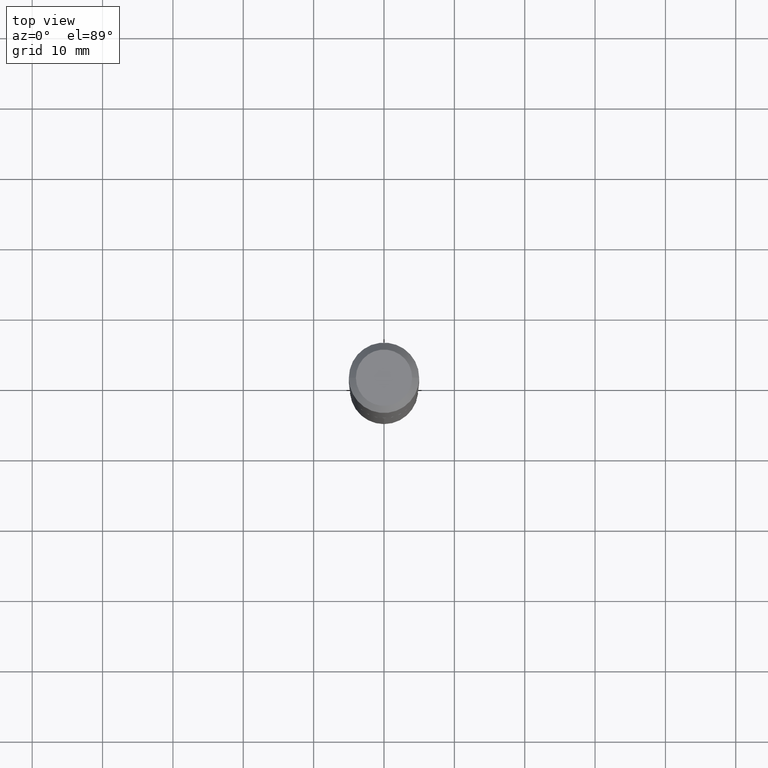
[diagram: clean part render]
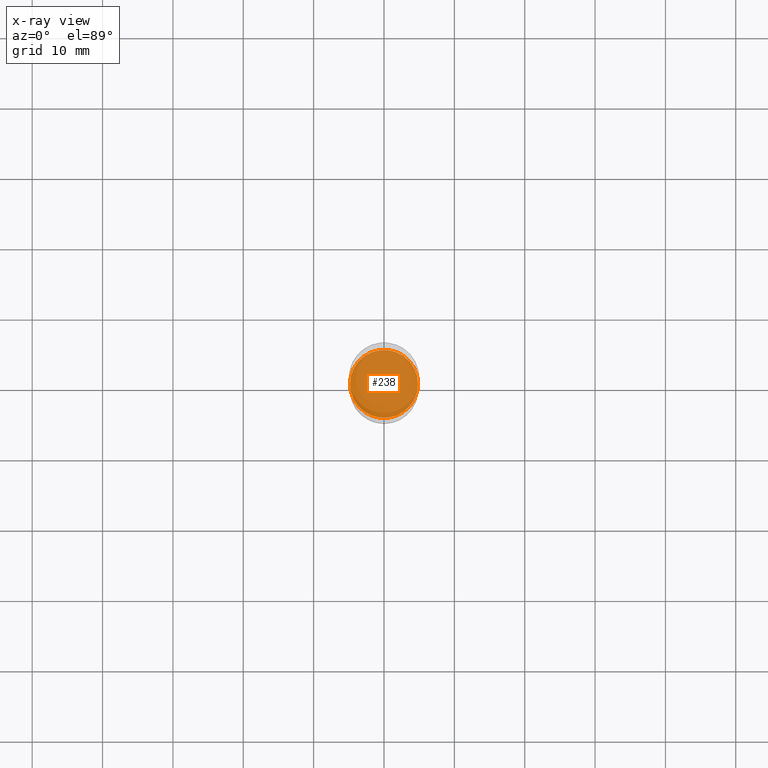
[diagram: x-ray — body ghosted, one internal face saturated and labeled with its STEP entity id]
A machine part, top view, then the same camera in x-ray: the body is ghosted and one INTERNAL B-rep face — a face not visible from any outside direction — is saturated and labeled: STEP entity #238.
In plain terms, the highlighted planar face has unit normal (-0, 0, 1).
Its self-contained STEP definition (entity closure, byte-faithful):
#12 = AXIS2_PLACEMENT_3D ( 'NONE', #151, #296, #228 ) ;
#72 = DIRECTION ( 'NONE',  ( 1.000000000000000000, -6.982962677686266711E-15, 0.000000000000000000 ) ) ;
#73 = ORIENTED_EDGE ( 'NONE', *, *, #137, .F. ) ;
#119 = CARTESIAN_POINT ( 'NONE',  ( -0.1904500000000000082, -5.750683249652116288E-15, -2.035400000000000098 ) ) ;
#121 = CIRCLE ( 'NONE', #363, 0.1904500000000000082 ) ;
#137 = EDGE_CURVE ( 'NONE', #306, #365, #121, .T. ) ;
#148 = DIRECTION ( 'NONE',  ( -2.445468806185136597E-29, 3.491481338843145583E-15, 1.000000000000000000 ) ) ;
#151 = CARTESIAN_POINT ( 'NONE',  ( 2.938752182690371349E-29, -1.002617435221089489E-14, -2.035399999999999654 ) ) ;
#160 = EDGE_CURVE ( 'NONE', #365, #306, #314, .T. ) ;
#172 = AXIS2_PLACEMENT_3D ( 'NONE', #463, #148, #224 ) ;
#224 = DIRECTION ( 'NONE',  ( 1.000000000000000000, -6.982962677686266711E-15, 0.000000000000000000 ) ) ;
#228 = DIRECTION ( 'NONE',  ( 1.000000000000000000, -6.982962677686265922E-15, 4.876176775795935793E-29 ) ) ;
#238 = ADVANCED_FACE ( 'NONE', ( #335 ), #489, .F. ) ;
#296 = DIRECTION ( 'NONE',  ( -2.438088387897960049E-29, 3.491481338843145188E-15, 1.000000000000000000 ) ) ;
#306 = VERTEX_POINT ( 'NONE', #315 ) ;
#314 = CIRCLE ( 'NONE', #172, 0.1904500000000000082 ) ;
#315 = CARTESIAN_POINT ( 'NONE',  ( 0.1904500000000000082, -8.436466359046688679E-15, -2.035400000000000098 ) ) ;
#335 = FACE_OUTER_BOUND ( 'NONE', #471, .T. ) ;
#363 = AXIS2_PLACEMENT_3D ( 'NONE', #458, #411, #72 ) ;
#365 = VERTEX_POINT ( 'NONE', #119 ) ;
#371 = ORIENTED_EDGE ( 'NONE', *, *, #160, .F. ) ;
#411 = DIRECTION ( 'NONE',  ( -2.445468806185136597E-29, 3.491481338843145583E-15, 1.000000000000000000 ) ) ;
#458 = CARTESIAN_POINT ( 'NONE',  ( 4.977507208109227059E-29, -7.106561117081339140E-15, -2.035400000000000098 ) ) ;
#463 = CARTESIAN_POINT ( 'NONE',  ( 4.977507208109227059E-29, -7.106561117081339140E-15, -2.035400000000000098 ) ) ;
#471 = EDGE_LOOP ( 'NONE', ( #73, #371 ) ) ;
#489 = PLANE ( 'NONE',  #12 ) ;